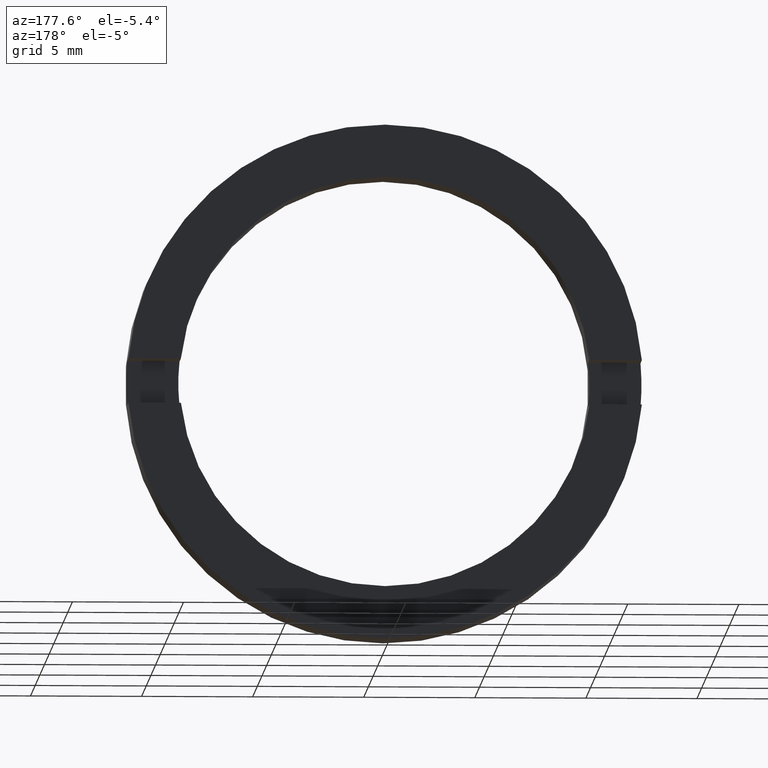
[diagram: clean part render]
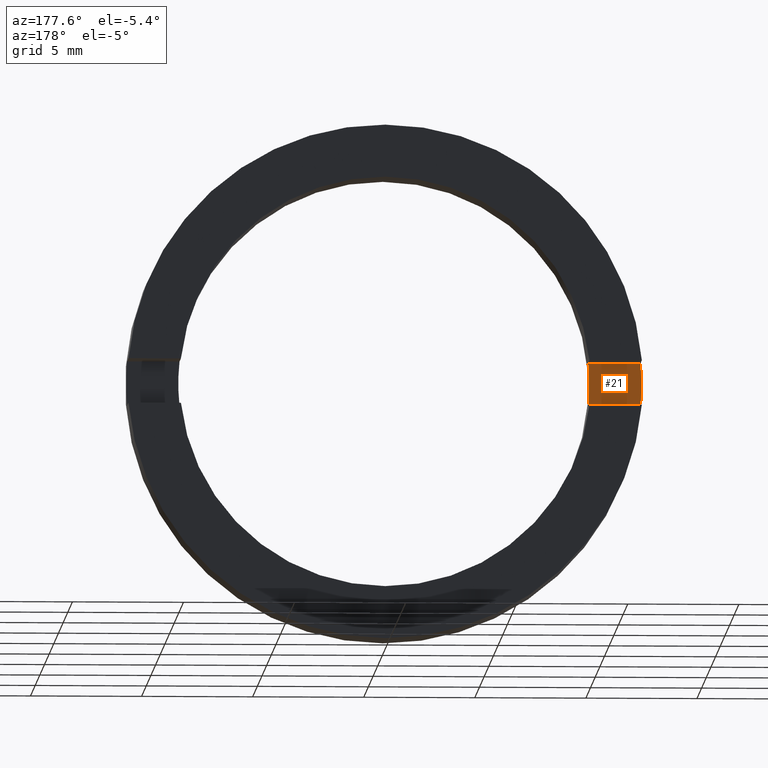
[diagram: same view with one face highlighted and labeled with its STEP entity id]
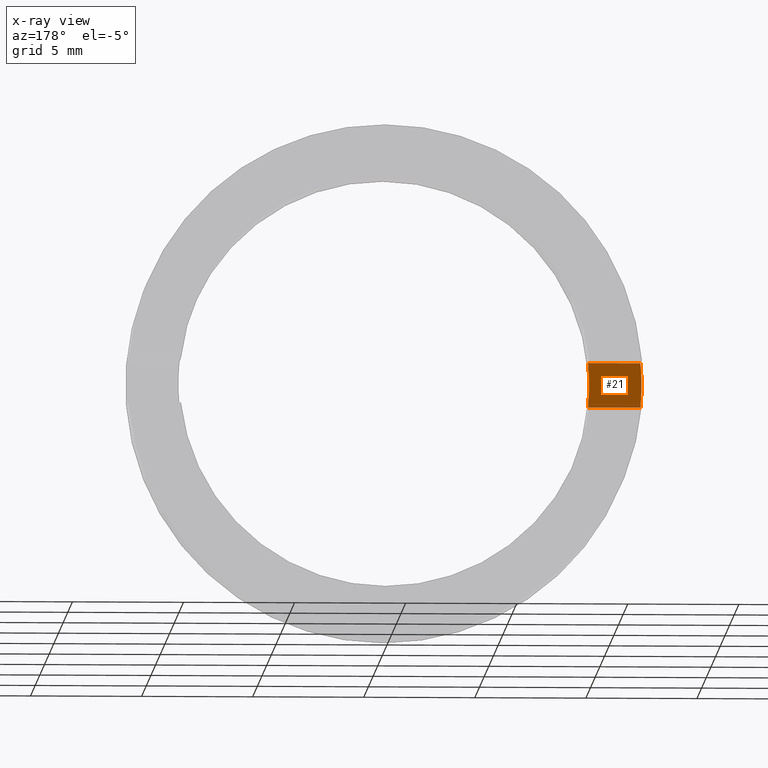
[diagram: x-ray of the same camera — body ghosted, the highlighted face saturated]
A machine part, auxiliary view. The second image highlights one B-rep face of the part: STEP entity #21.
The next image is the same camera in x-ray: the body ghosted, the highlighted face saturated — about 0% of this face is hidden behind the body in this view.
In plain terms, the highlighted planar face has unit normal (0, 1, 0).
Its self-contained STEP definition (entity closure, byte-faithful):
#20 = ORIENTED_EDGE ( 'NONE', *, *, #467, .T. ) ;
#21 = ADVANCED_FACE ( 'NONE', ( #543 ), #325, .T. ) ;
#52 = EDGE_CURVE ( 'NONE', #486, #449, #394, .T. ) ;
#56 = DIRECTION ( 'NONE',  ( 0.0000000000000000000, 1.000000000000000000, 0.0000000000000000000 ) ) ;
#57 = DIRECTION ( 'NONE',  ( 0.0000000000000000000, -0.0000000000000000000, 1.000000000000000000 ) ) ;
#64 = EDGE_CURVE ( 'NONE', #449, #566, #282, .T. ) ;
#146 = VECTOR ( 'NONE', #346, 1000.000000000000000 ) ;
#147 = CARTESIAN_POINT ( 'NONE',  ( 0.0000000000000000000, -3.464249787179428400, 0.0000000000000000000 ) ) ;
#153 = DIRECTION ( 'NONE',  ( 0.0000000000000000000, 0.0000000000000000000, 1.000000000000000000 ) ) ;
#155 = AXIS2_PLACEMENT_3D ( 'NONE', #196, #56, #57 ) ;
#157 = DIRECTION ( 'NONE',  ( -0.0000000000000000000, -1.000000000000000000, -0.0000000000000000000 ) ) ;
#196 = CARTESIAN_POINT ( 'NONE',  ( 0.0000000000000000000, -3.464249787179431100, 0.0000000000000000000 ) ) ;
#210 = CARTESIAN_POINT ( 'NONE',  ( -11.55681617055493900, -3.464249787179428400, -0.9999999999999995600 ) ) ;
#217 = DIRECTION ( 'NONE',  ( 1.000000000000000000, 0.0000000000000000000, 0.0000000000000000000 ) ) ;
#237 = EDGE_LOOP ( 'NONE', ( #20, #545, #430, #321 ) ) ;
#282 = LINE ( 'NONE', #295, #146 ) ;
#295 = CARTESIAN_POINT ( 'NONE',  ( -26.85254027261461800, -3.464249787179431100, -1.000000000000000000 ) ) ;
#300 = AXIS2_PLACEMENT_3D ( 'NONE', #147, #157, #153 ) ;
#317 = VECTOR ( 'NONE', #217, 1000.000000000000000 ) ;
#321 = ORIENTED_EDGE ( 'NONE', *, *, #64, .T. ) ;
#325 = PLANE ( 'NONE',  #155 ) ;
#346 = DIRECTION ( 'NONE',  ( -1.000000000000000000, -0.0000000000000000000, -0.0000000000000000000 ) ) ;
#354 = CARTESIAN_POINT ( 'NONE',  ( -9.195787078874765500, -3.464249787179428400, 0.9999999999999995600 ) ) ;
#358 = VERTEX_POINT ( 'NONE', #508 ) ;
#388 = CARTESIAN_POINT ( 'NONE',  ( -26.85254027261461800, -3.464249787179431100, 1.000000000000000000 ) ) ;
#394 = CIRCLE ( 'NONE', #300, 9.250000000000007100 ) ;
#396 = CARTESIAN_POINT ( 'NONE',  ( 0.0000000000000000000, -3.464249787179428400, 0.0000000000000000000 ) ) ;
#421 = CARTESIAN_POINT ( 'NONE',  ( -9.195787078874765500, -3.464249787179428400, -0.9999999999999995600 ) ) ;
#430 = ORIENTED_EDGE ( 'NONE', *, *, #52, .T. ) ;
#435 = DIRECTION ( 'NONE',  ( 0.0000000000000000000, 0.0000000000000000000, 1.000000000000000000 ) ) ;
#449 = VERTEX_POINT ( 'NONE', #421 ) ;
#467 = EDGE_CURVE ( 'NONE', #566, #358, #494, .T. ) ;
#486 = VERTEX_POINT ( 'NONE', #354 ) ;
#488 = DIRECTION ( 'NONE',  ( 0.0000000000000000000, 1.000000000000000000, 0.0000000000000000000 ) ) ;
#493 = AXIS2_PLACEMENT_3D ( 'NONE', #396, #488, #435 ) ;
#494 = CIRCLE ( 'NONE', #493, 11.60000000000000700 ) ;
#508 = CARTESIAN_POINT ( 'NONE',  ( -11.55681617055493900, -3.464249787179428400, 0.9999999999999995600 ) ) ;
#518 = LINE ( 'NONE', #388, #317 ) ;
#538 = EDGE_CURVE ( 'NONE', #358, #486, #518, .T. ) ;
#543 = FACE_OUTER_BOUND ( 'NONE', #237, .T. ) ;
#545 = ORIENTED_EDGE ( 'NONE', *, *, #538, .T. ) ;
#566 = VERTEX_POINT ( 'NONE', #210 ) ;